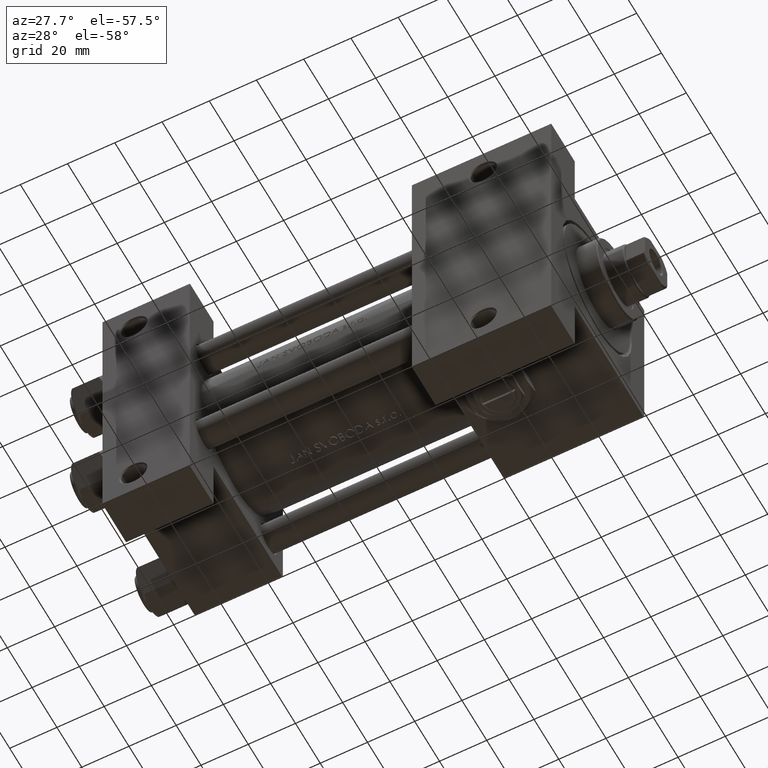
[diagram: clean part render]
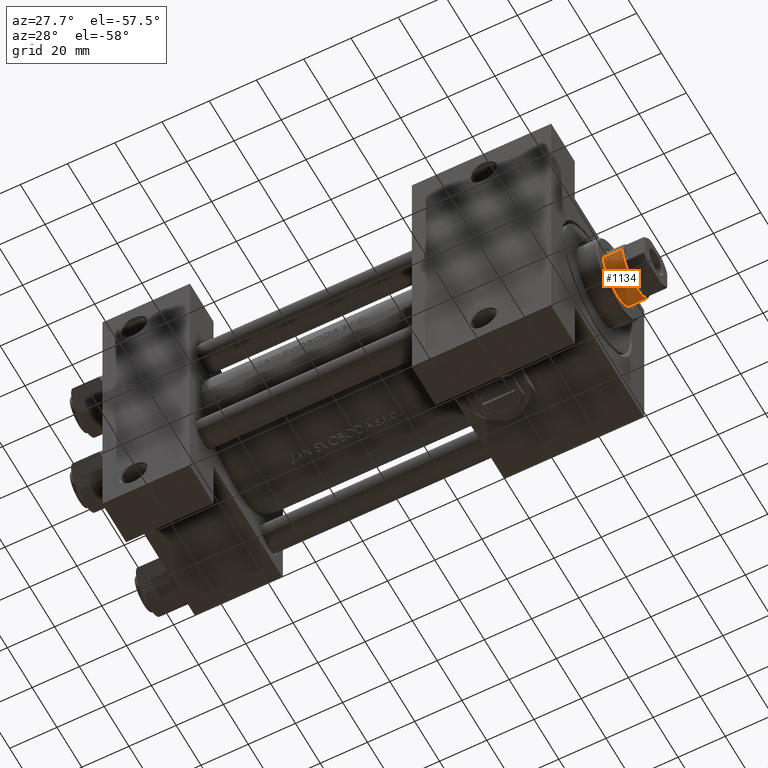
[diagram: same view with one face highlighted and labeled with its STEP entity id]
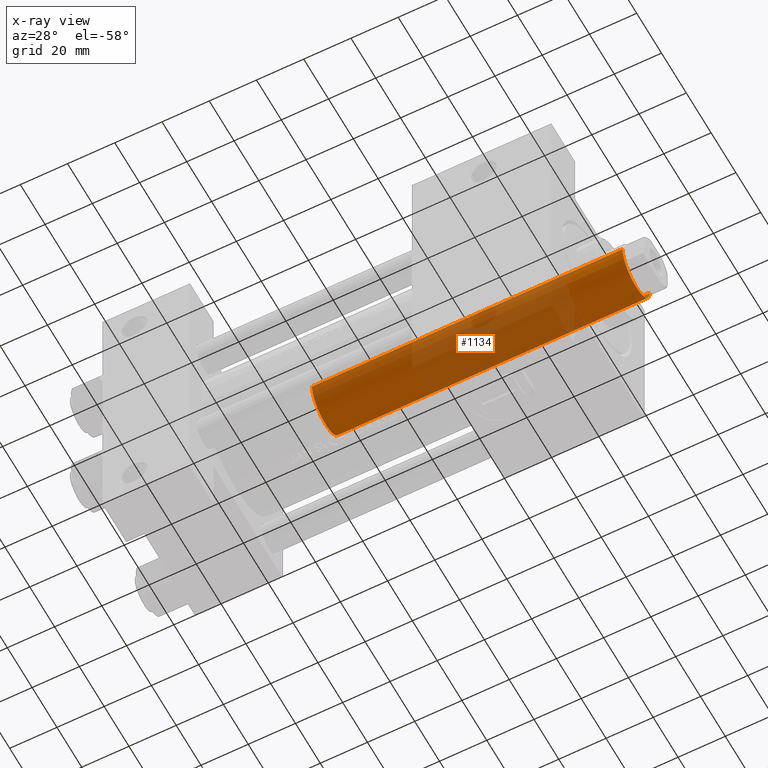
[diagram: x-ray of the same camera — body ghosted, the highlighted face saturated]
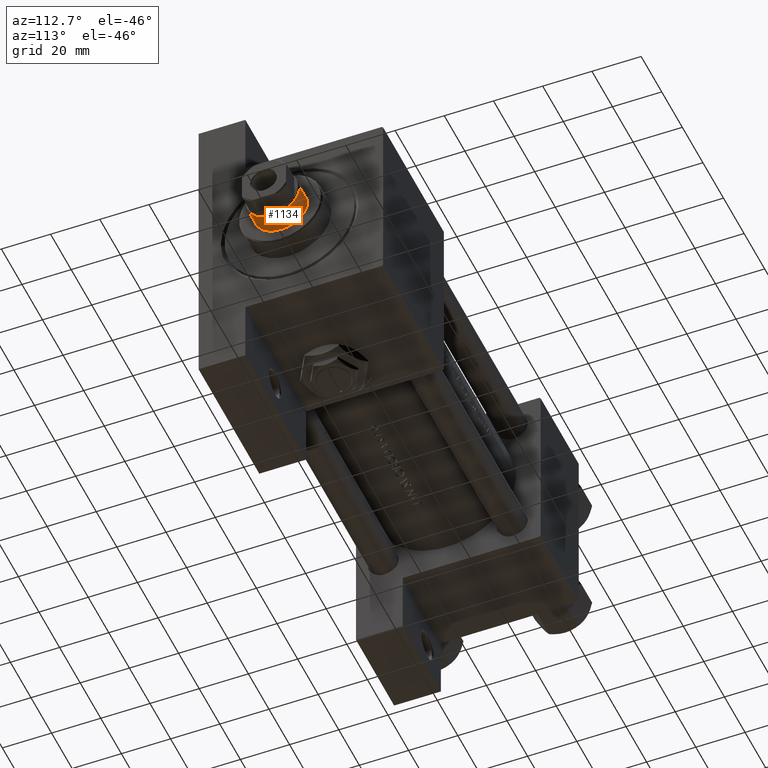
[diagram: same view with one face highlighted and labeled with its STEP entity id]
A machine part, auxiliary view. The second image highlights one B-rep face of the part: STEP entity #1134.
The next image is the same camera in x-ray: the body ghosted, the highlighted face saturated — about 58% of this face is hidden behind the body in this view.
A second angle (auxiliary view) of the same face is appended — the face is thin or edge-on in the first view.
In plain terms, the highlighted cylindrical surface (edge-blend (fillet) strip) has radius 11 mm, axis along (-1, 0, 0).
Its self-contained STEP definition (entity closure, byte-faithful):
#1134 = ADVANCED_FACE ( 'NONE', ( #24403 ), #39590, .T. ) ;
#1643 = EDGE_CURVE ( 'NONE', #15744, #9966, #10672, .T. ) ;
#2613 = EDGE_CURVE ( 'NONE', #9966, #12408, #40287, .T. ) ;
#3546 = CARTESIAN_POINT ( 'NONE',  ( -11.00000000000000000, 0.000000000000000000, 38.00000000000000000 ) ) ;
#3651 = AXIS2_PLACEMENT_3D ( 'NONE', #13182, #28399, #5464 ) ;
#5464 = DIRECTION ( 'NONE',  ( -1.000000000000000000, 0.000000000000000000, 0.000000000000000000 ) ) ;
#8287 = CARTESIAN_POINT ( 'NONE',  ( 11.00000000000000000, 1.347111479062088405E-15, 38.00000000000000000 ) ) ;
#9256 = CARTESIAN_POINT ( 'NONE',  ( 0.000000000000000000, 0.000000000000000000, 169.5000000000000284 ) ) ;
#9966 = VERTEX_POINT ( 'NONE', #8287 ) ;
#10672 = LINE ( 'NONE', #41532, #41832 ) ;
#10799 = EDGE_LOOP ( 'NONE', ( #13877, #31331, #38207, #13871 ) ) ;
#11042 = LINE ( 'NONE', #29519, #28246 ) ;
#12408 = VERTEX_POINT ( 'NONE', #3546 ) ;
#13182 = CARTESIAN_POINT ( 'NONE',  ( 0.000000000000000000, 0.000000000000000000, 170.0000000000000000 ) ) ;
#13871 = ORIENTED_EDGE ( 'NONE', *, *, #27844, .F. ) ;
#13877 = ORIENTED_EDGE ( 'NONE', *, *, #45125, .T. ) ;
#14123 = DIRECTION ( 'NONE',  ( 1.000000000000000000, 0.000000000000000000, 0.000000000000000000 ) ) ;
#15375 = DIRECTION ( 'NONE',  ( -0.000000000000000000, -0.000000000000000000, -1.000000000000000000 ) ) ;
#15744 = VERTEX_POINT ( 'NONE', #36403 ) ;
#16007 = DIRECTION ( 'NONE',  ( 1.000000000000000000, 0.000000000000000000, 0.000000000000000000 ) ) ;
#17854 = CARTESIAN_POINT ( 'NONE',  ( 0.000000000000000000, 0.000000000000000000, 38.00000000000000000 ) ) ;
#18794 = AXIS2_PLACEMENT_3D ( 'NONE', #17854, #48240, #14123 ) ;
#20714 = CIRCLE ( 'NONE', #39824, 11.00000000000000000 ) ;
#23550 = VERTEX_POINT ( 'NONE', #23791 ) ;
#23791 = CARTESIAN_POINT ( 'NONE',  ( -11.00000000000000000, 0.000000000000000000, 169.5000000000000284 ) ) ;
#24403 = FACE_OUTER_BOUND ( 'NONE', #10799, .T. ) ;
#27844 = EDGE_CURVE ( 'NONE', #23550, #12408, #11042, .T. ) ;
#28246 = VECTOR ( 'NONE', #33483, 1000.000000000000000 ) ;
#28399 = DIRECTION ( 'NONE',  ( -0.000000000000000000, -0.000000000000000000, -1.000000000000000000 ) ) ;
#29519 = CARTESIAN_POINT ( 'NONE',  ( -11.00000000000000000, 0.000000000000000000, 170.0000000000000000 ) ) ;
#31331 = ORIENTED_EDGE ( 'NONE', *, *, #1643, .T. ) ;
#33483 = DIRECTION ( 'NONE',  ( -0.000000000000000000, -0.000000000000000000, -1.000000000000000000 ) ) ;
#36403 = CARTESIAN_POINT ( 'NONE',  ( 11.00000000000000000, 1.347111479062088405E-15, 169.5000000000000284 ) ) ;
#38207 = ORIENTED_EDGE ( 'NONE', *, *, #2613, .T. ) ;
#39590 = CYLINDRICAL_SURFACE ( 'NONE', #3651, 11.00000000000000000 ) ;
#39824 = AXIS2_PLACEMENT_3D ( 'NONE', #9256, #39901, #16007 ) ;
#39901 = DIRECTION ( 'NONE',  ( 0.000000000000000000, 0.000000000000000000, -1.000000000000000000 ) ) ;
#40287 = CIRCLE ( 'NONE', #18794, 11.00000000000000000 ) ;
#41532 = CARTESIAN_POINT ( 'NONE',  ( 11.00000000000000000, 1.347111479062088405E-15, 170.0000000000000000 ) ) ;
#41832 = VECTOR ( 'NONE', #15375, 1000.000000000000000 ) ;
#45125 = EDGE_CURVE ( 'NONE', #23550, #15744, #20714, .T. ) ;
#48240 = DIRECTION ( 'NONE',  ( 0.000000000000000000, 0.000000000000000000, 1.000000000000000000 ) ) ;